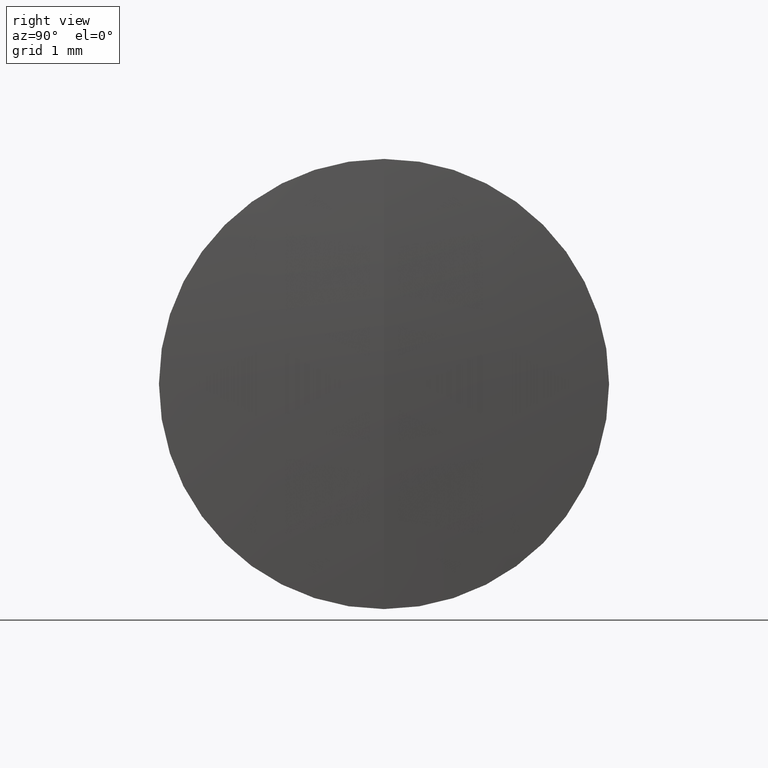
[diagram: clean part render]
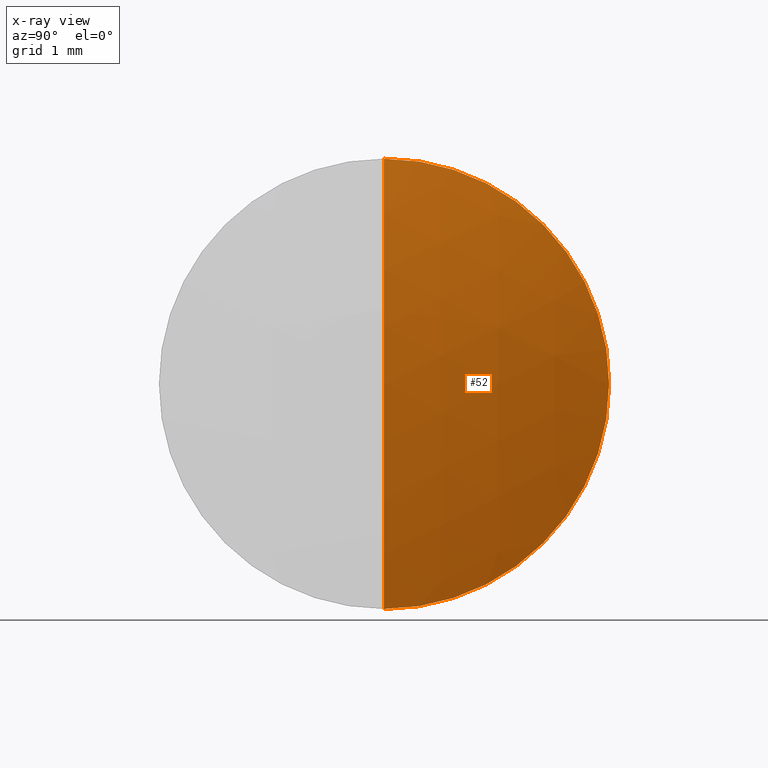
[diagram: x-ray — body ghosted, one internal face saturated and labeled with its STEP entity id]
A machine part, right view, then the same camera in x-ray: the body is ghosted and one INTERNAL B-rep face — a face not visible from any outside direction — is saturated and labeled: STEP entity #52.
In plain terms, the highlighted spherical surface has radius 7.6 mm.
Its self-contained STEP definition (entity closure, byte-faithful):
#23 = CARTESIAN_POINT ( 'NONE',  ( 262.8091958044815900, 0.0000000000000000000, 2.500000000000000000 ) ) ;
#29 = CIRCLE ( 'NONE', #302, 7.599999999999996100 ) ;
#37 = CIRCLE ( 'NONE', #196, 2.500000000000000000 ) ;
#47 = EDGE_CURVE ( 'NONE', #152, #304, #321, .T. ) ;
#48 = FACE_OUTER_BOUND ( 'NONE', #268, .T. ) ;
#52 = ADVANCED_FACE ( 'NONE', ( #48 ), #344, .T. ) ;
#67 = CARTESIAN_POINT ( 'NONE',  ( 263.2321490580823700, 0.0000000000000000000, 4.653657836759939800E-016 ) ) ;
#69 = ORIENTED_EDGE ( 'NONE', *, *, #343, .F. ) ;
#78 = ORIENTED_EDGE ( 'NONE', *, *, #224, .F. ) ;
#110 = ORIENTED_EDGE ( 'NONE', *, *, #47, .T. ) ;
#132 = CARTESIAN_POINT ( 'NONE',  ( 255.6321490580823500, 0.0000000000000000000, 0.0000000000000000000 ) ) ;
#134 = DIRECTION ( 'NONE',  ( 0.0000000000000000000, 0.0000000000000000000, -1.000000000000000000 ) ) ;
#152 = VERTEX_POINT ( 'NONE', #67 ) ;
#162 = DIRECTION ( 'NONE',  ( 0.0000000000000000000, 0.0000000000000000000, 1.000000000000000000 ) ) ;
#192 = DIRECTION ( 'NONE',  ( 0.0000000000000000000, 1.000000000000000000, 0.0000000000000000000 ) ) ;
#193 = AXIS2_PLACEMENT_3D ( 'NONE', #214, #213, #216 ) ;
#196 = AXIS2_PLACEMENT_3D ( 'NONE', #204, #229, #331 ) ;
#202 = AXIS2_PLACEMENT_3D ( 'NONE', #132, #192, #162 ) ;
#204 = CARTESIAN_POINT ( 'NONE',  ( 262.8091958044815900, 0.0000000000000000000, 0.0000000000000000000 ) ) ;
#207 = VERTEX_POINT ( 'NONE', #23 ) ;
#210 = DIRECTION ( 'NONE',  ( 0.0000000000000000000, -1.000000000000000000, 0.0000000000000000000 ) ) ;
#213 = DIRECTION ( 'NONE',  ( -0.0000000000000000000, 1.000000000000000000, 1.224646799147353200E-016 ) ) ;
#214 = CARTESIAN_POINT ( 'NONE',  ( 255.6321490580823500, 0.0000000000000000000, 0.0000000000000000000 ) ) ;
#216 = DIRECTION ( 'NONE',  ( 0.0000000000000000000, -1.224646799147353200E-016, 1.000000000000000000 ) ) ;
#224 = EDGE_CURVE ( 'NONE', #152, #207, #29, .T. ) ;
#229 = DIRECTION ( 'NONE',  ( -1.000000000000000000, -0.0000000000000000000, -0.0000000000000000000 ) ) ;
#268 = EDGE_LOOP ( 'NONE', ( #78, #110, #69 ) ) ;
#283 = CARTESIAN_POINT ( 'NONE',  ( 262.8091958044815900, 3.061616997868383100E-016, -2.500000000000000000 ) ) ;
#302 = AXIS2_PLACEMENT_3D ( 'NONE', #305, #210, #134 ) ;
#304 = VERTEX_POINT ( 'NONE', #283 ) ;
#305 = CARTESIAN_POINT ( 'NONE',  ( 255.6321490580823500, 0.0000000000000000000, 0.0000000000000000000 ) ) ;
#321 = CIRCLE ( 'NONE', #193, 7.599999999999996100 ) ;
#331 = DIRECTION ( 'NONE',  ( 0.0000000000000000000, 0.0000000000000000000, 1.000000000000000000 ) ) ;
#343 = EDGE_CURVE ( 'NONE', #207, #304, #37, .T. ) ;
#344 = SPHERICAL_SURFACE ( 'NONE', #202, 7.599999999999996100 ) ;